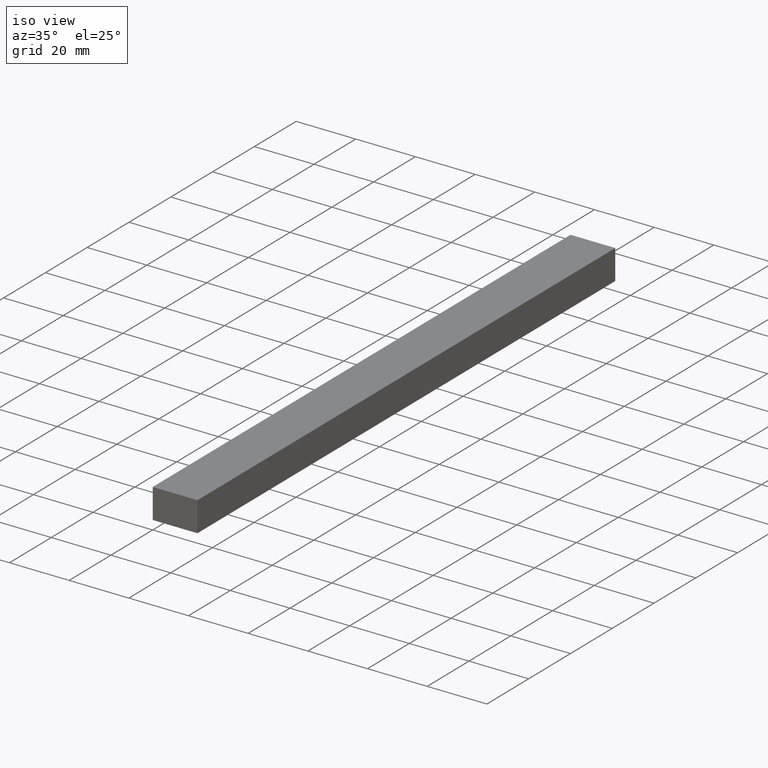
[diagram: clean part render]
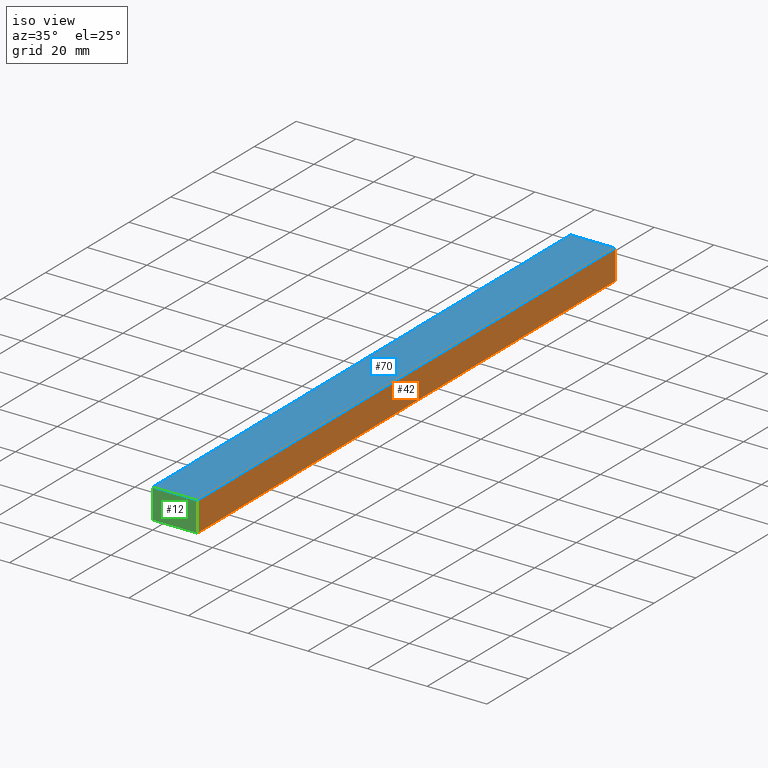
[diagram: same view with three faces highlighted in distinct colors, each labeled with its STEP entity id]
A machine part, iso view with three faces highlighted in distinct colors.
Their STEP definitions:

[orange] entity #42 — the highlighted planar face has unit normal (1, 0, 0).
#1 = ORIENTED_EDGE ( 'NONE', *, *, #122, .F. ) ;
#7 = VERTEX_POINT ( 'NONE', #188 ) ;
#9 = DIRECTION ( 'NONE',  ( -0.0000000000000000000, -0.0000000000000000000, 1.000000000000000000 ) ) ;
#13 = EDGE_LOOP ( 'NONE', ( #52, #1, #153, #193 ) ) ;
#14 = LINE ( 'NONE', #54, #176 ) ;
#15 = CARTESIAN_POINT ( 'NONE',  ( 15.00000000000000000, 1000.000000000000000, 0.0000000000000000000 ) ) ;
#30 = VERTEX_POINT ( 'NONE', #61 ) ;
#36 = VECTOR ( 'NONE', #136, 1000.000000000000000 ) ;
#42 = ADVANCED_FACE ( 'NONE', ( #177 ), #186, .T. ) ;
#51 = LINE ( 'NONE', #84, #126 ) ;
#52 = ORIENTED_EDGE ( 'NONE', *, *, #179, .F. ) ;
#54 = CARTESIAN_POINT ( 'NONE',  ( 15.00000000000000000, 200.0000000000000000, 0.0000000000000000000 ) ) ;
#59 = VERTEX_POINT ( 'NONE', #211 ) ;
#61 = CARTESIAN_POINT ( 'NONE',  ( 15.00000000000000000, 0.0000000000000000000, 10.00000000000000000 ) ) ;
#62 = AXIS2_PLACEMENT_3D ( 'NONE', #15, #228, #227 ) ;
#75 = CARTESIAN_POINT ( 'NONE',  ( 15.00000000000000000, 200.0000000000000000, 0.0000000000000000000 ) ) ;
#83 = VECTOR ( 'NONE', #91, 1000.000000000000000 ) ;
#84 = CARTESIAN_POINT ( 'NONE',  ( 15.00000000000000000, 0.0000000000000000000, 0.0000000000000000000 ) ) ;
#88 = VERTEX_POINT ( 'NONE', #75 ) ;
#91 = DIRECTION ( 'NONE',  ( 0.0000000000000000000, -1.000000000000000000, 0.0000000000000000000 ) ) ;
#103 = CARTESIAN_POINT ( 'NONE',  ( 15.00000000000000000, 1000.000000000000000, 10.00000000000000000 ) ) ;
#113 = CARTESIAN_POINT ( 'NONE',  ( 15.00000000000000000, 1000.000000000000000, 0.0000000000000000000 ) ) ;
#122 = EDGE_CURVE ( 'NONE', #88, #59, #168, .T. ) ;
#126 = VECTOR ( 'NONE', #132, 1000.000000000000000 ) ;
#132 = DIRECTION ( 'NONE',  ( -0.0000000000000000000, -0.0000000000000000000, 1.000000000000000000 ) ) ;
#136 = DIRECTION ( 'NONE',  ( 0.0000000000000000000, -1.000000000000000000, 0.0000000000000000000 ) ) ;
#153 = ORIENTED_EDGE ( 'NONE', *, *, #231, .T. ) ;
#167 = LINE ( 'NONE', #103, #83 ) ;
#168 = LINE ( 'NONE', #113, #36 ) ;
#176 = VECTOR ( 'NONE', #9, 1000.000000000000000 ) ;
#177 = FACE_OUTER_BOUND ( 'NONE', #13, .T. ) ;
#179 = EDGE_CURVE ( 'NONE', #59, #30, #51, .T. ) ;
#186 = PLANE ( 'NONE',  #62 ) ;
#188 = CARTESIAN_POINT ( 'NONE',  ( 15.00000000000000000, 200.0000000000000000, 10.00000000000000000 ) ) ;
#193 = ORIENTED_EDGE ( 'NONE', *, *, #205, .T. ) ;
#205 = EDGE_CURVE ( 'NONE', #7, #30, #167, .T. ) ;
#211 = CARTESIAN_POINT ( 'NONE',  ( 15.00000000000000000, 0.0000000000000000000, 0.0000000000000000000 ) ) ;
#227 = DIRECTION ( 'NONE',  ( 0.0000000000000000000, 0.0000000000000000000, -1.000000000000000000 ) ) ;
#228 = DIRECTION ( 'NONE',  ( 1.000000000000000000, 0.0000000000000000000, 0.0000000000000000000 ) ) ;
#231 = EDGE_CURVE ( 'NONE', #88, #7, #14, .T. ) ;

[blue] entity #70 — the highlighted planar face has unit normal (0, 0, 1).
#3 = EDGE_CURVE ( 'NONE', #49, #201, #164, .T. ) ;
#6 = LINE ( 'NONE', #162, #161 ) ;
#7 = VERTEX_POINT ( 'NONE', #188 ) ;
#20 = VECTOR ( 'NONE', #237, 1000.000000000000000 ) ;
#30 = VERTEX_POINT ( 'NONE', #61 ) ;
#41 = VECTOR ( 'NONE', #194, 1000.000000000000000 ) ;
#44 = CARTESIAN_POINT ( 'NONE',  ( 0.0000000000000000000, 0.0000000000000000000, 10.00000000000000000 ) ) ;
#49 = VERTEX_POINT ( 'NONE', #58 ) ;
#58 = CARTESIAN_POINT ( 'NONE',  ( 0.0000000000000000000, 200.0000000000000000, 10.00000000000000000 ) ) ;
#61 = CARTESIAN_POINT ( 'NONE',  ( 15.00000000000000000, 0.0000000000000000000, 10.00000000000000000 ) ) ;
#69 = LINE ( 'NONE', #152, #41 ) ;
#70 = ADVANCED_FACE ( 'NONE', ( #234 ), #133, .T. ) ;
#73 = EDGE_LOOP ( 'NONE', ( #114, #145, #147, #110 ) ) ;
#76 = EDGE_CURVE ( 'NONE', #7, #49, #69, .T. ) ;
#83 = VECTOR ( 'NONE', #91, 1000.000000000000000 ) ;
#85 = EDGE_CURVE ( 'NONE', #30, #201, #6, .T. ) ;
#91 = DIRECTION ( 'NONE',  ( 0.0000000000000000000, -1.000000000000000000, 0.0000000000000000000 ) ) ;
#98 = DIRECTION ( 'NONE',  ( 0.0000000000000000000, 0.0000000000000000000, 1.000000000000000000 ) ) ;
#99 = AXIS2_PLACEMENT_3D ( 'NONE', #139, #98, #204 ) ;
#103 = CARTESIAN_POINT ( 'NONE',  ( 15.00000000000000000, 1000.000000000000000, 10.00000000000000000 ) ) ;
#110 = ORIENTED_EDGE ( 'NONE', *, *, #3, .T. ) ;
#114 = ORIENTED_EDGE ( 'NONE', *, *, #85, .F. ) ;
#133 = PLANE ( 'NONE',  #99 ) ;
#135 = CARTESIAN_POINT ( 'NONE',  ( 0.0000000000000000000, 1000.000000000000000, 10.00000000000000000 ) ) ;
#139 = CARTESIAN_POINT ( 'NONE',  ( 15.00000000000000000, 1000.000000000000000, 10.00000000000000000 ) ) ;
#145 = ORIENTED_EDGE ( 'NONE', *, *, #205, .F. ) ;
#147 = ORIENTED_EDGE ( 'NONE', *, *, #76, .T. ) ;
#152 = CARTESIAN_POINT ( 'NONE',  ( 0.0000000000000000000, 200.0000000000000000, 10.00000000000000000 ) ) ;
#161 = VECTOR ( 'NONE', #209, 1000.000000000000000 ) ;
#162 = CARTESIAN_POINT ( 'NONE',  ( 0.0000000000000000000, 0.0000000000000000000, 10.00000000000000000 ) ) ;
#164 = LINE ( 'NONE', #135, #20 ) ;
#167 = LINE ( 'NONE', #103, #83 ) ;
#188 = CARTESIAN_POINT ( 'NONE',  ( 15.00000000000000000, 200.0000000000000000, 10.00000000000000000 ) ) ;
#194 = DIRECTION ( 'NONE',  ( -1.000000000000000000, -0.0000000000000000000, -0.0000000000000000000 ) ) ;
#201 = VERTEX_POINT ( 'NONE', #44 ) ;
#204 = DIRECTION ( 'NONE',  ( 1.000000000000000000, 0.0000000000000000000, 0.0000000000000000000 ) ) ;
#205 = EDGE_CURVE ( 'NONE', #7, #30, #167, .T. ) ;
#209 = DIRECTION ( 'NONE',  ( -1.000000000000000000, -0.0000000000000000000, -0.0000000000000000000 ) ) ;
#234 = FACE_OUTER_BOUND ( 'NONE', #73, .T. ) ;
#237 = DIRECTION ( 'NONE',  ( 0.0000000000000000000, -1.000000000000000000, 0.0000000000000000000 ) ) ;

[green] entity #12 — the highlighted planar face has unit normal (0, 1, 0).
#6 = LINE ( 'NONE', #162, #161 ) ;
#12 = ADVANCED_FACE ( 'NONE', ( #210 ), #29, .F. ) ;
#29 = PLANE ( 'NONE',  #163 ) ;
#30 = VERTEX_POINT ( 'NONE', #61 ) ;
#34 = ORIENTED_EDGE ( 'NONE', *, *, #85, .T. ) ;
#38 = DIRECTION ( 'NONE',  ( 1.000000000000000000, -0.0000000000000000000, -0.0000000000000000000 ) ) ;
#44 = CARTESIAN_POINT ( 'NONE',  ( 0.0000000000000000000, 0.0000000000000000000, 10.00000000000000000 ) ) ;
#45 = CARTESIAN_POINT ( 'NONE',  ( 0.0000000000000000000, 0.0000000000000000000, 0.0000000000000000000 ) ) ;
#51 = LINE ( 'NONE', #84, #126 ) ;
#53 = EDGE_LOOP ( 'NONE', ( #129, #92, #34, #106 ) ) ;
#59 = VERTEX_POINT ( 'NONE', #211 ) ;
#61 = CARTESIAN_POINT ( 'NONE',  ( 15.00000000000000000, 0.0000000000000000000, 10.00000000000000000 ) ) ;
#67 = DIRECTION ( 'NONE',  ( -0.0000000000000000000, 1.000000000000000000, 0.0000000000000000000 ) ) ;
#84 = CARTESIAN_POINT ( 'NONE',  ( 15.00000000000000000, 0.0000000000000000000, 0.0000000000000000000 ) ) ;
#85 = EDGE_CURVE ( 'NONE', #30, #201, #6, .T. ) ;
#92 = ORIENTED_EDGE ( 'NONE', *, *, #179, .T. ) ;
#106 = ORIENTED_EDGE ( 'NONE', *, *, #226, .T. ) ;
#125 = VECTOR ( 'NONE', #229, 1000.000000000000000 ) ;
#126 = VECTOR ( 'NONE', #132, 1000.000000000000000 ) ;
#129 = ORIENTED_EDGE ( 'NONE', *, *, #191, .T. ) ;
#132 = DIRECTION ( 'NONE',  ( -0.0000000000000000000, -0.0000000000000000000, 1.000000000000000000 ) ) ;
#161 = VECTOR ( 'NONE', #209, 1000.000000000000000 ) ;
#162 = CARTESIAN_POINT ( 'NONE',  ( 0.0000000000000000000, 0.0000000000000000000, 10.00000000000000000 ) ) ;
#163 = AXIS2_PLACEMENT_3D ( 'NONE', #189, #67, #182 ) ;
#179 = EDGE_CURVE ( 'NONE', #59, #30, #51, .T. ) ;
#182 = DIRECTION ( 'NONE',  ( 1.000000000000000000, 0.0000000000000000000, 0.0000000000000000000 ) ) ;
#187 = VERTEX_POINT ( 'NONE', #45 ) ;
#189 = CARTESIAN_POINT ( 'NONE',  ( 0.0000000000000000000, 0.0000000000000000000, 0.0000000000000000000 ) ) ;
#191 = EDGE_CURVE ( 'NONE', #187, #59, #199, .T. ) ;
#199 = LINE ( 'NONE', #207, #206 ) ;
#201 = VERTEX_POINT ( 'NONE', #44 ) ;
#206 = VECTOR ( 'NONE', #38, 1000.000000000000000 ) ;
#207 = CARTESIAN_POINT ( 'NONE',  ( 0.0000000000000000000, 0.0000000000000000000, 0.0000000000000000000 ) ) ;
#209 = DIRECTION ( 'NONE',  ( -1.000000000000000000, -0.0000000000000000000, -0.0000000000000000000 ) ) ;
#210 = FACE_OUTER_BOUND ( 'NONE', #53, .T. ) ;
#211 = CARTESIAN_POINT ( 'NONE',  ( 15.00000000000000000, 0.0000000000000000000, 0.0000000000000000000 ) ) ;
#219 = CARTESIAN_POINT ( 'NONE',  ( 0.0000000000000000000, 0.0000000000000000000, 0.0000000000000000000 ) ) ;
#225 = LINE ( 'NONE', #219, #125 ) ;
#226 = EDGE_CURVE ( 'NONE', #201, #187, #225, .T. ) ;
#229 = DIRECTION ( 'NONE',  ( -0.0000000000000000000, -0.0000000000000000000, -1.000000000000000000 ) ) ;